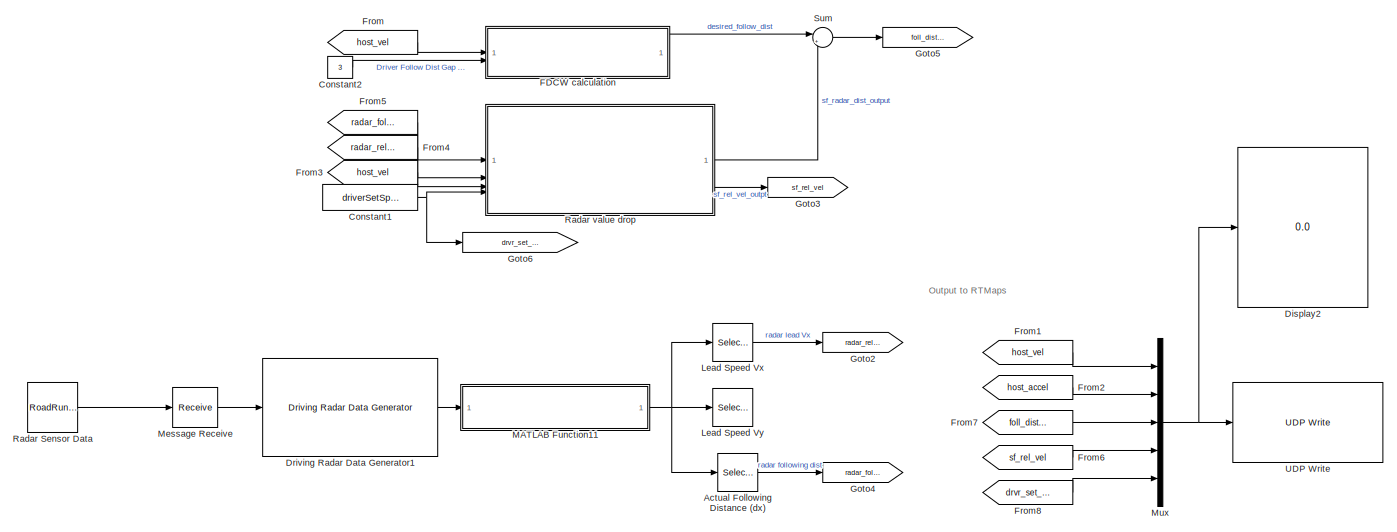
[diagram: root canvas - part 1/2, middle right region]
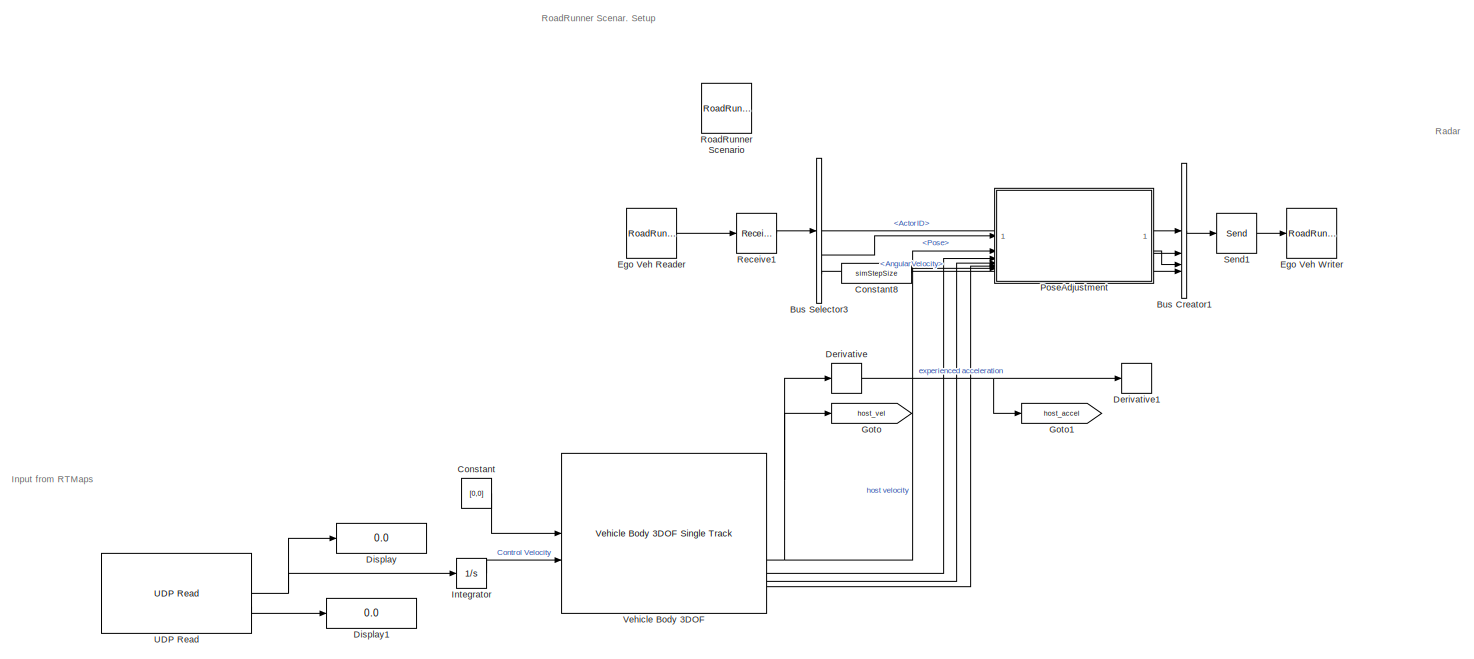
[diagram: root canvas - part 2/2, left side, full height]
MODEL slx_7dc16d087c1d
KIND model
CONFIG AbsTol = auto
CONFIG EnableMultiTasking = off
CONFIG FixedStep = 0.05
CONFIG MaxStep = auto
CONFIG MinStep = auto
CONFIG RelTol = 1e-3
CONFIG SampleTimeConstraint = Unconstrained
CONFIG SolverName = FixedStepAuto
CONFIG StartTime = 0
CONFIG StopTime = 100
BLOCK [Selector] Actual Following Distance (dx)
  IndexOptions = Index vector (dialog)
  Indices = [1]
  InputPortWidth = 6
  OutputSizes = 1
BLOCK [BusCreator] Bus Creator1
  DisplayOption = bar
  InheritFromInputs = off
  Inputs = 4
  NonVirtualBus = on
  OutDataTypeStr = Bus: BusActorRuntime
BLOCK [BusSelector] Bus Selector3
  OutputSignals = ActorID,Pose,Velocity,AngularVelocity
BLOCK [Constant] Constant
  Value = [0,0]
BLOCK [Constant] Constant1
  Value = driverSetSpeed
BLOCK [Constant] Constant2
  Value = 3
BLOCK [Constant] Constant8
  Value = simStepSize
BLOCK [Derivative] Derivative
BLOCK [Derivative] Derivative1
BLOCK [Display] Display
  Decimation = 1
BLOCK [Display] Display1
  Decimation = 1
BLOCK [Display] Display2
  Decimation = 1
BLOCK [Reference] Driving Radar Data Generator1  REF=drivingscenarioandsensors/Driving Radar Data Generator
  SourceBlock = drivingscenarioandsensors/Driving Radar Data Generator
  SourceType = drivingRadarDataGenerator
BLOCK [Reference] Ego Veh Reader  REF=roadrunnerscenario/RoadRunner Scenario
Reader
  SourceBlock = roadrunnerscenario/RoadRunner Scenario\nReader
BLOCK [Reference] Ego Veh Writer  REF=roadrunnerscenario/RoadRunner Scenario
Writer
  SourceBlock = roadrunnerscenario/RoadRunner Scenario\nWriter
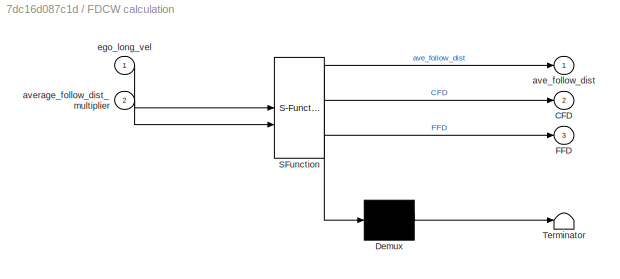
BLOCK [SubSystem] FDCW calculation
  ErrorFcn = Stateflow.Translate.translate
  PermitHierarchicalResolution = ExplicitOnly
  SFBlockType = MATLAB Function
  TreatAsAtomicUnit = on
BLOCK [Demux] FDCW calculation/ Demux 
  Outputs = 1
BLOCK [S-Function] FDCW calculation/ SFunction 
  EnableBusSupport = on
  FunctionName = sf_sfun
  PortCounts = [2 4]
  SFcnIsStateOwnerBlock = off
  SFunctionDeploymentMode = off
  Tag = Stateflow S-Function 23
BLOCK [Terminator] FDCW calculation/ Terminator 
BLOCK [Outport] FDCW calculation/CFD
  Port = 2
BLOCK [Outport] FDCW calculation/FFD
  Port = 3
BLOCK [Outport] FDCW calculation/ave_follow_dist
BLOCK [Inport] FDCW calculation/average_follow_dist_multiplier
  Port = 2
BLOCK [Inport] FDCW calculation/ego_long_vel
BLOCK [From] From
  GotoTag = host_vel
BLOCK [From] From1
  GotoTag = host_vel
BLOCK [From] From2
  GotoTag = host_accel
BLOCK [From] From3
  GotoTag = host_vel
BLOCK [From] From4
  GotoTag = radar_rel_vel
BLOCK [From] From5
  GotoTag = radar_foll_dist
BLOCK [From] From6
  GotoTag = sf_rel_vel
BLOCK [From] From7
  GotoTag = foll_dist_error
BLOCK [From] From8
  GotoTag = drvr_set_speed
BLOCK [Goto] Goto
  GotoTag = host_vel
BLOCK [Goto] Goto1
  GotoTag = host_accel
BLOCK [Goto] Goto2
  GotoTag = radar_rel_vel
BLOCK [Goto] Goto3
  GotoTag = sf_rel_vel
BLOCK [Goto] Goto4
  GotoTag = radar_foll_dist
BLOCK [Goto] Goto5
  GotoTag = foll_dist_error
BLOCK [Goto] Goto6
  GotoTag = drvr_set_speed
BLOCK [Integrator] Integrator
BLOCK [Selector] Lead Speed Vx
  IndexOptions = Index vector (dialog)
  Indices = 4
  InputPortWidth = 6
  OutputSizes = 1
BLOCK [Selector] Lead Speed Vy
  IndexOptions = Index vector (dialog)
  Indices = 5
  InputPortWidth = 6
  NameLocation = top
  OutputSizes = 1
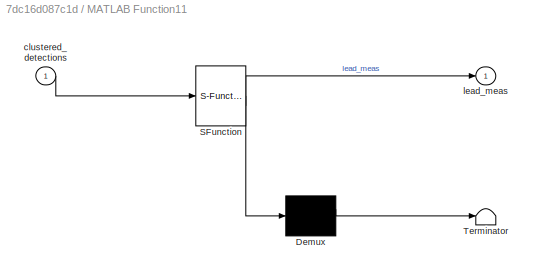
BLOCK [SubSystem] MATLAB Function11
  ErrorFcn = Stateflow.Translate.translate
  PermitHierarchicalResolution = ExplicitOnly
  SFBlockType = MATLAB Function
  TreatAsAtomicUnit = on
BLOCK [Demux] MATLAB Function11/ Demux 
  Outputs = 1
BLOCK [S-Function] MATLAB Function11/ SFunction 
  EnableBusSupport = on
  FunctionName = sf_sfun
  PortCounts = [1 2]
  SFcnIsStateOwnerBlock = off
  SFunctionDeploymentMode = off
  Tag = Stateflow S-Function 22
BLOCK [Terminator] MATLAB Function11/ Terminator 
BLOCK [Inport] MATLAB Function11/clustered_detections
BLOCK [Outport] MATLAB Function11/lead_meas
BLOCK [Receive] Message Receive
  InputPortMap = u0
  InputPortMessageModes = m
  OutputPortMap = o1
  UseInternalQueue = off
BLOCK [Mux] Mux
  DisplayOption = bar
  Inputs = 5
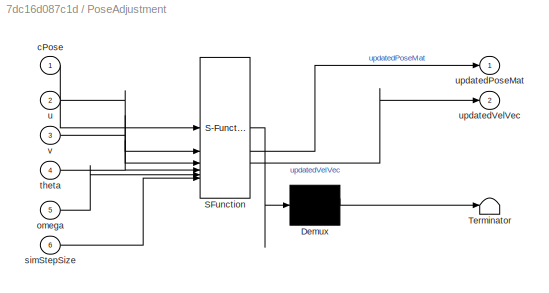
BLOCK [SubSystem] PoseAdjustment
  ErrorFcn = Stateflow.Translate.translate
  PermitHierarchicalResolution = ExplicitOnly
  SFBlockType = MATLAB Function
  TreatAsAtomicUnit = on
BLOCK [Demux] PoseAdjustment/ Demux 
  Outputs = 1
BLOCK [S-Function] PoseAdjustment/ SFunction 
  EnableBusSupport = on
  FunctionName = sf_sfun
  PortCounts = [6 3]
  SFcnIsStateOwnerBlock = off
  SFunctionDeploymentMode = off
  Tag = Stateflow S-Function 12
BLOCK [Terminator] PoseAdjustment/ Terminator 
BLOCK [Inport] PoseAdjustment/cPose
BLOCK [Inport] PoseAdjustment/omega
  Port = 5
BLOCK [Inport] PoseAdjustment/simStepSize
  Port = 6
BLOCK [Inport] PoseAdjustment/theta
  Port = 4
BLOCK [Inport] PoseAdjustment/u
  Port = 2
BLOCK [Outport] PoseAdjustment/updatedPoseMat
BLOCK [Outport] PoseAdjustment/updatedVelVec
  Port = 2
BLOCK [Inport] PoseAdjustment/v
  Port = 3
BLOCK [Reference] Radar Sensor Data  REF=roadrunnerscenario/RoadRunner Scenario
Reader
  SourceBlock = roadrunnerscenario/RoadRunner Scenario\nReader
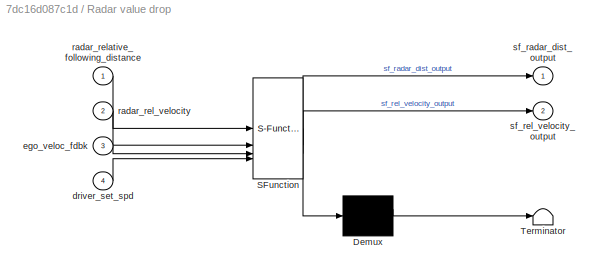
BLOCK [SubSystem] Radar value drop
  ErrorFcn = Stateflow.Translate.translate
  PermitHierarchicalResolution = ExplicitOnly
  SFBlockType = Chart
  TreatAsAtomicUnit = on
BLOCK [Demux] Radar value drop/ Demux 
  Outputs = 1
BLOCK [S-Function] Radar value drop/ SFunction 
  EnableBusSupport = on
  FunctionName = sf_sfun
  PortCounts = [4 3]
  SFcnIsStateOwnerBlock = off
  SFunctionDeploymentMode = off
  Tag = Stateflow S-Function 3
BLOCK [Terminator] Radar value drop/ Terminator 
BLOCK [Inport] Radar value drop/driver_set_spd
  Port = 4
BLOCK [Inport] Radar value drop/ego_veloc_fdbk
  Port = 3
BLOCK [Inport] Radar value drop/radar_rel_velocity
  Port = 2
BLOCK [Inport] Radar value drop/radar_relative_following_distance
BLOCK [Outport] Radar value drop/sf_radar_dist_output
BLOCK [Outport] Radar value drop/sf_rel_velocity_output
  Port = 2
BLOCK [Receive] Receive1
  InputPortMap = u0
  InputPortMessageModes = m
  OutputPortMap = o1
  QueueLength = 1
  QueueOverwriting = on
  QueueType = LIFO
  UseInternalQueue = off
BLOCK [Reference] RoadRunner Scenario  REF=roadrunnerscenario/RoadRunner Scenario
  SourceBlock = roadrunnerscenario/RoadRunner Scenario
BLOCK [Send] Send1
  InputPortMap = u1
  OutputPortMessageModes = m
BLOCK [Sum] Sum
  Inputs = |+-
BLOCK [Reference] UDP Read  REF=hostiolib/UDP Read
  SourceBlock = hostiolib/UDP Read
  SourceType = UDP Read
BLOCK [Reference] UDP Write  REF=hostiolib/UDP Write
  SourceBlock = hostiolib/UDP Write
  SourceType = UDP Write
BLOCK [Reference] Vehicle Body 3DOF   REF=autolibshared/Vehicle Body 3DOF Single Track
  LibrarySourceBlock = vehdynlibeom/Vehicle Body 3DOF Single Track
  SourceBlock = autolibshared/Vehicle Body 3DOF Single Track
  SourceType = Vehicle Body 3DOF Lateral
ANNOTATION (root): Input from RTMaps
ANNOTATION (root): Output to RTMaps
ANNOTATION (root): Radar
ANNOTATION (root): RoadRunner Scenar. Setup
LINE Actual Following Distance (dx):1 -> Goto4:1
LINE Bus Creator1:1 -> Send1:1
LINE Bus Selector3:1 -> Bus Creator1:1
LINE Bus Selector3:2 -> PoseAdjustment:1
LINE Bus Selector3:4 -> Bus Creator1:4
NET Constant1:1 -> Goto6:1, Radar value drop:4
LINE Constant2:1 -> FDCW calculation:2
LINE Constant8:1 -> PoseAdjustment:6
LINE Constant:1 -> Vehicle Body 3DOF :1
NET Derivative:1 -> Derivative1:1, Goto1:1
LINE Driving Radar Data Generator1:1 -> MATLAB Function11:1
LINE Ego Veh Reader:1 -> Receive1:1
LINE FDCW calculation:1 -> Sum:1
LINE From1:1 -> Mux:1
LINE From2:1 -> Mux:2
LINE From3:1 -> Radar value drop:3
LINE From4:1 -> Radar value drop:2
LINE From5:1 -> Radar value drop:1
LINE From6:1 -> Mux:4
LINE From7:1 -> Mux:3
LINE From8:1 -> Mux:5
LINE From:1 -> FDCW calculation:1
LINE Integrator:1 -> Vehicle Body 3DOF :2
LINE Lead Speed Vx:1 -> Goto2:1
NET MATLAB Function11:1 -> Actual Following Distance (dx):1, Lead Speed Vx:1, Lead Speed Vy:1
LINE Message Receive:1 -> Driving Radar Data Generator1:1
NET Mux:1 -> Display2:1, UDP Write:1
LINE PoseAdjustment:1 -> Bus Creator1:2
LINE PoseAdjustment:2 -> Bus Creator1:3
LINE Radar Sensor Data:1 -> Message Receive:1
LINE Radar value drop:1 -> Sum:2
LINE Radar value drop:2 -> Goto3:1
LINE Receive1:1 -> Bus Selector3:1
LINE Send1:1 -> Ego Veh Writer:1
LINE Sum:1 -> Goto5:1
NET UDP Read:1 -> Display:1, Integrator:1
LINE UDP Read:2 -> Display1:1
NET Vehicle Body 3DOF :2 -> Derivative:1, Goto:1, PoseAdjustment:2
LINE Vehicle Body 3DOF :3 -> PoseAdjustment:3
LINE Vehicle Body 3DOF :4 -> PoseAdjustment:4
LINE Vehicle Body 3DOF :5 -> PoseAdjustment:5
note: NET lines group one-source signal fan-out (src -> all destinations, sorted); 1:1 wires keep LINE
CHART Radar value drop states=3 transitions=3
  STATE_LABEL 'Radar_State_Lead_Veh_Present_and_Detected\n\nsf_radar_dist_output = radar_relative_following_distance;\n% sf_radar_dist_output = smooth_switch(sf_radar_dist_output, radar_relative_following_distance, 0.05, 2);\nsf_rel_velocity_output = radar_rel_velocity;\n%sf_rel_velocity_output = smooth_switch(sf_rel_velocity_output, radar_rel_velocity, 0.05, 1);\n'
  STATE_LABEL 'filtered_val = smooth_switch(prev_val, curr_val, dt, tau)'
  STATE_LABEL 'SCRIPT:\nfunction filtered_val = smooth_switch(prev_val, curr_val, dt, tau)\n% Smooth transition from prev_val toward curr_val\n% dt  = sample time [s]; equal to system sample time of 0.05s currently\n% tau = time constant [s] (0.3–1.0 typical)\n\nif isempty(prev_val)\n    prev_val = 0;\nend\n\nalpha = exp(-dt/tau);\nfiltered_val = alpha*prev_val + (1-alpha)*curr_val;\nend'
  STATE_LABEL 'Output_Spoof_To_Keep_Moving\n\n% sf_radar_dist_output = 150;\nsf_radar_dist_output = smooth_switch(sf_radar_dist_output, 150, 0.05, 2);\nset_spd_err = driver_set_spd - ego_veloc_fdbk;\n% sf_rel_velocity_output = set_spd_err;\nsf_rel_velocity_output = smooth_switch(sf_rel_velocity_output, set_spd_err, 0.05, 5);'
CHART PoseAdjustment states=1 transitions=1
  STATE_LABEL 'eML_blk_kernel()'
  STATE_LABEL 'SCRIPT:\nfunction [updatedPoseMat, updatedVelVec] = RRPoseAdjustment(cPose, u, v, theta, omega, simStepSize)\n    thetad = theta + omega*simStepSize;\n    xd = (u*cos(theta) - v*sin(theta))*simStepSize;\n    yd = (u*sin(theta) + v*cos(theta))*simStepSize;\n    pose_mat = [cos(-thetad) -sin(-thetad) 0 (yd+cPose(1,4)); sin(-thetad) cos(-thetad) 0 (xd+cPose(2,4)); 0 0 1 0; 0 0 0 1];\n    updatedPoseMat = p...<+108ch>'
CHART MATLAB Function11 states=1 transitions=1
  STATE_LABEL 'eML_blk_kernel()'
  STATE_LABEL 'SCRIPT:\nfunction lead_meas = fcn(clustered_detections)\n\nlead_det = clustered_detections.Detections(1);\nlead_meas = lead_det.Measurement;\n\n% relative_dist = sqrt(lead_det.Measurement(1)^2 + lead_det.Measurement(2)^2); % rel_dist = sqrt(x^2+y^2)\n% relative_speed = sqrt(lead_det.Measurement(4)^2 + lead_det.Measurement(5)^2);\nend'
CHART FDCW calculation states=1 transitions=1
  STATE_LABEL 'eML_blk_kernel()'
  STATE_LABEL "SCRIPT:\n% Function to determine the closest (CFD) and furthest follow distance (FFD) for the\n% ego vehicle relative to the lead vehicle given the ego vehicle's current\n% velocity\n\n% This function outputs the middle distance value between the CFD and FFD\n% and those values respectively as well\n\nfunction [ave_follow_dist, CFD, FFD] = fcn(ego_long_vel, average_follow_dist_multiplier)\n    persistent d...<+1268ch>"
CHART  states=0 transitions=0
CHART  states=0 transitions=0
CHART  states=0 transitions=0
CHART  states=0 transitions=0
